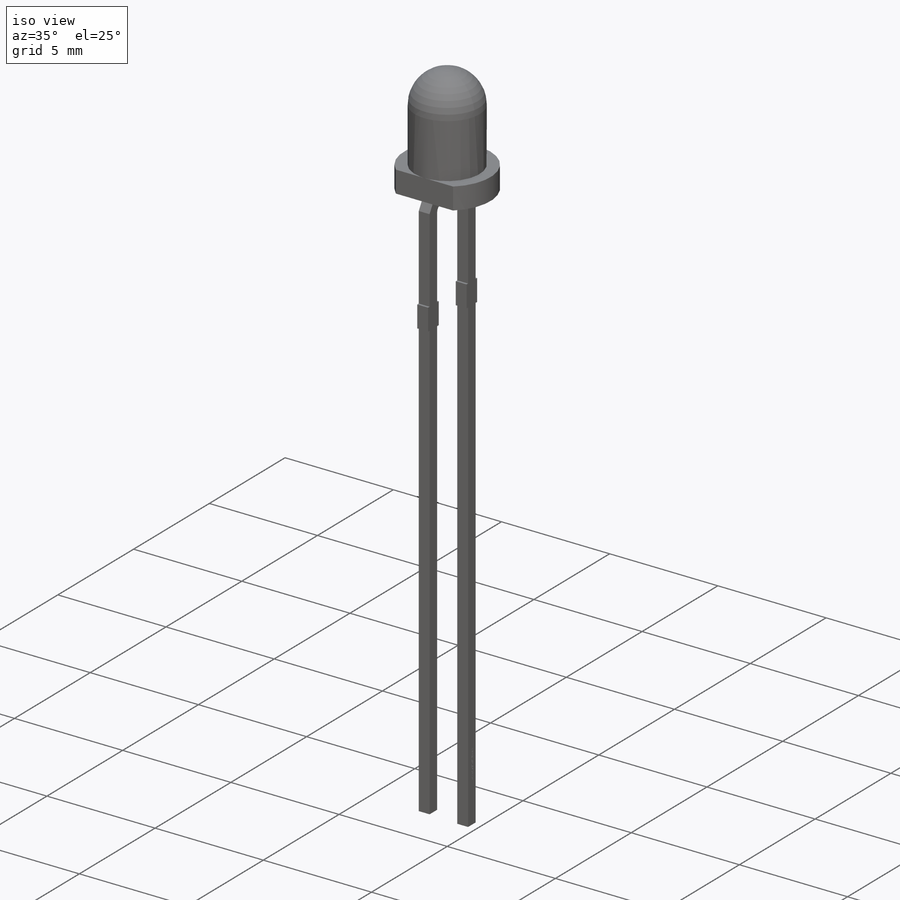
[diagram: iso view]
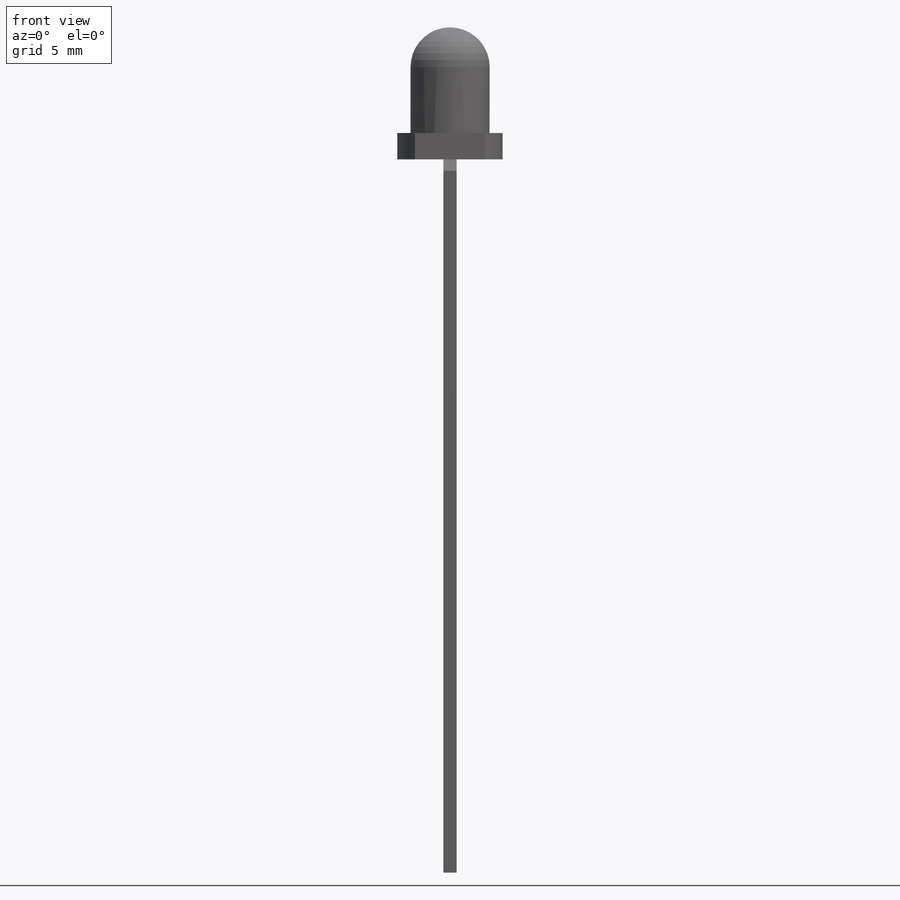
[diagram: front view]
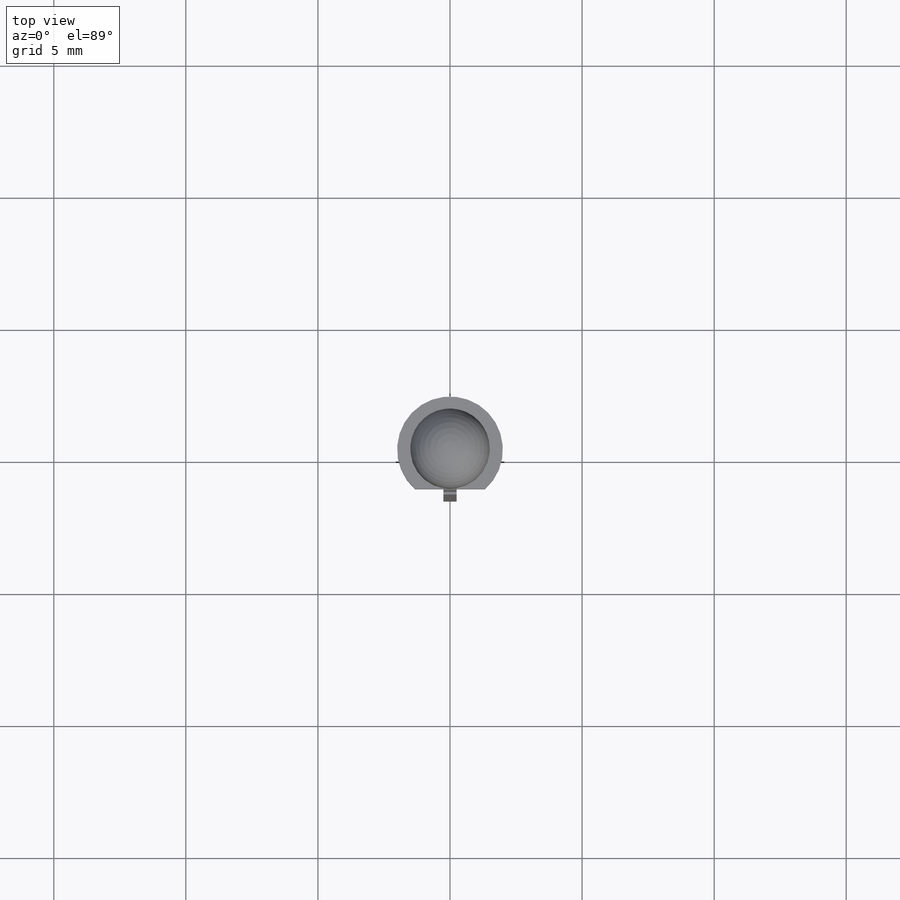
[diagram: top view]
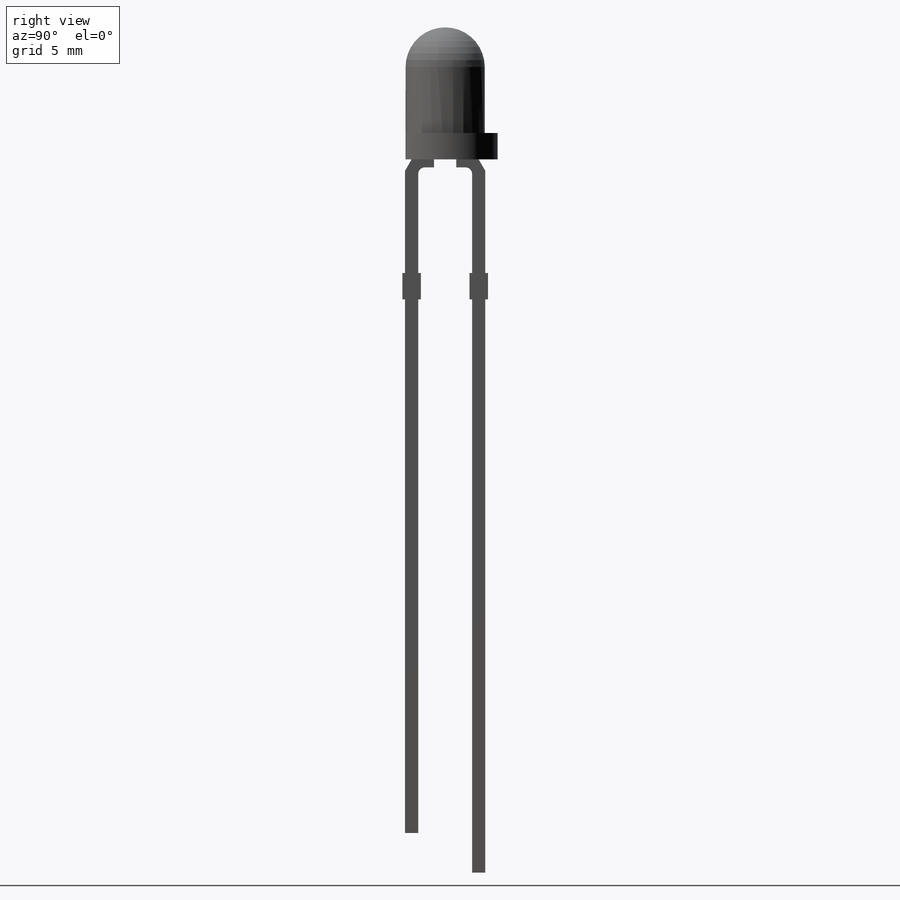
[diagram: right view]
SOLIDWORKS PART (.sldprt)
format: sldprt  version: not decoded by parser v0  size: 637,952 bytes
history: native  units: mm
features: sketch x5, extrude x3, fillet x2, material x1, revolve x1, plane x1, cut_extrude x1 (+11 scaffold rows collapsed)
feature tree (25):
  scaffold x11  (default folders/planes/origin — collapsed)
  material  "Material <not specified>"
  sketch  "Sketch1"  dims[c1.D3=1.5mm c1.D1=4.0mm c1.D2=1.5mm c2.D3=3.5mm]
  revolve  "Revolve1"  Angle=360deg
  plane  "Plane1"  Offset=1mm
  sketch  "Sketch2"  dims[D1=4.0mm]
  extrude  "Extrude1"  [1 undecoded]
  sketch  "Sketch3"  dims[c1.D4=0.85mm c1.D1=0.5mm c1.D2=~0.499494mm c2.D2=~210.033502deg c3.D2=~0.499494mm c4.D2=~210.033502deg c5.D2=~0.499494mm c6.D2=~210.033502deg c7.D2=~0.499494mm c8.D2=~210.033502deg c9.D2=~11.443466mm c10.D2=60.0deg c11.D2=~0.288675mm c12.D2=60.0deg c12.D3=0.6mm c12.D4=25.5mm c12.D5=0.3mm c12.D6=~2.570006mm c13.D6=90.0deg c14.D6=0.7mm c14.D7=1.0mm c14.D8=5.0mm c14.D9=25.5mm c14.D4=27.0mm c15.D9=1.5mm c15.D10=2.54mm c15.D4=27.0mm c16.D9=1.5mm c16.D8=9.3mm c16.D5=5.3mm c16.D4=27.0mm c17.D9=1.5mm c17.D10=2.5mm c17.D3=0.6mm c18.D10=2.54mm]
  extrude  "Extrude2"  Depth=0.5mm
  extrude  "Extrude3"  [1 undecoded]
  sketch  "Sketch3<4>"  dims[D1=0.5mm]
  fillet  "Fillet1"  Radius=0.25mm
  fillet  "Fillet2"  Radius=0.25mm
  sketch  "Sketch4"  dims[D1=5.0mm]
  cut_extrude  "Cut-Extrude1"  Depth=0.01mm
decode coverage: 10 of 12 modeling features carry decoded parameters
note: ~ marks probable driven/reference dimensions
note: 2 parameter values undecoded
note: suppression state not decoded; provenance and decode notes live in map.json
